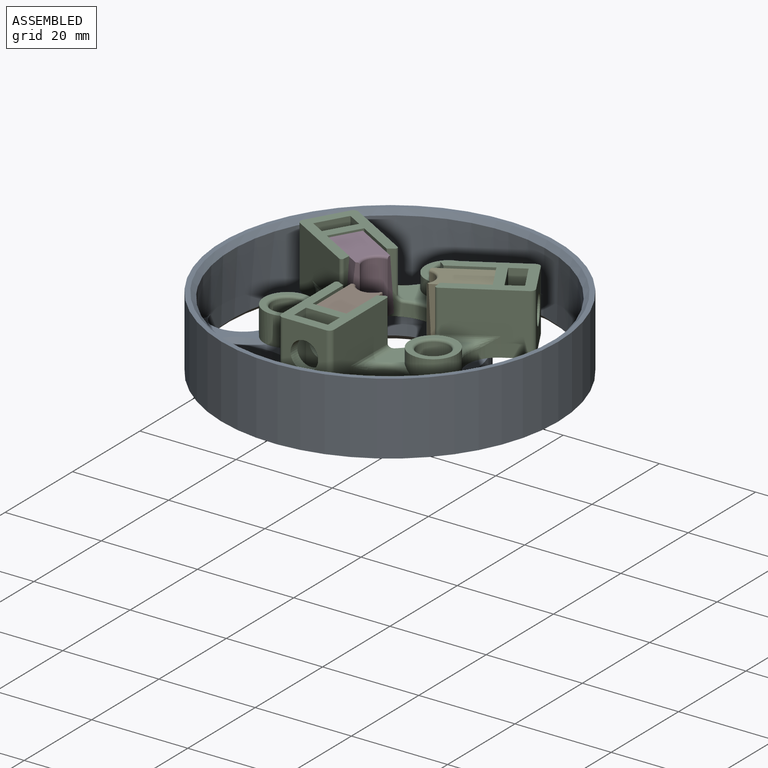
[diagram: assembled view]
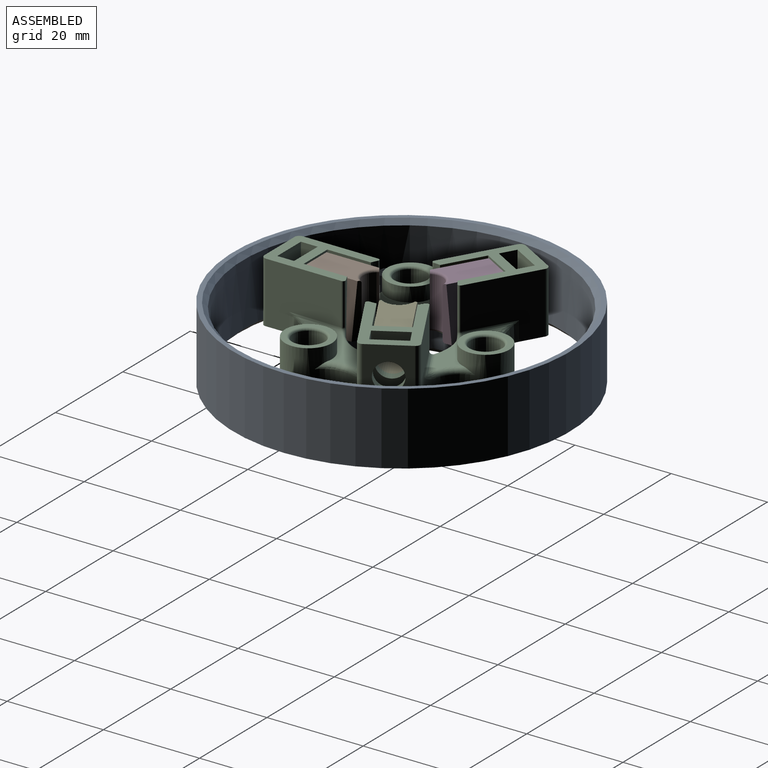
[diagram: assembled view, second angle]
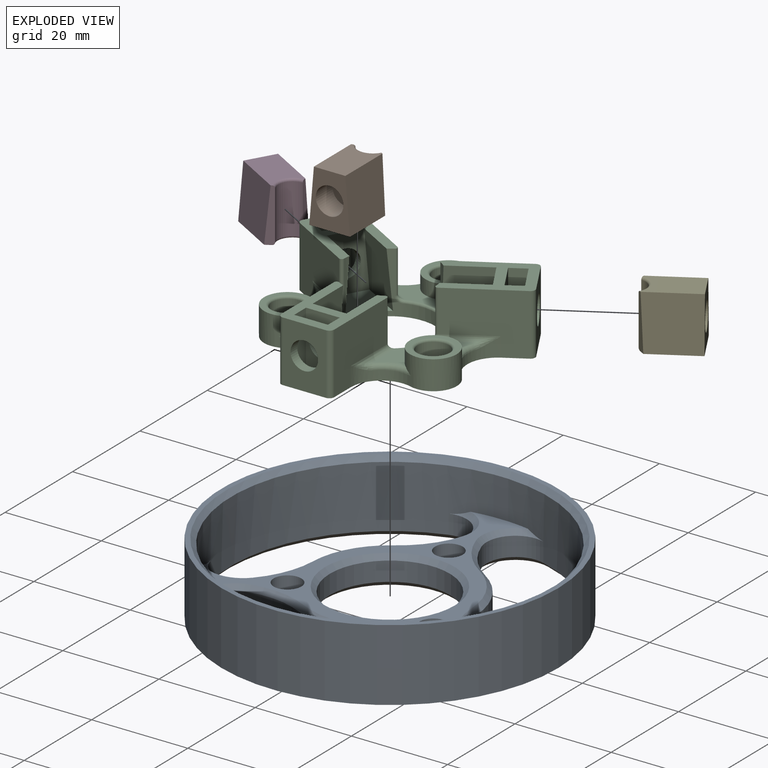
[diagram: exploded view]
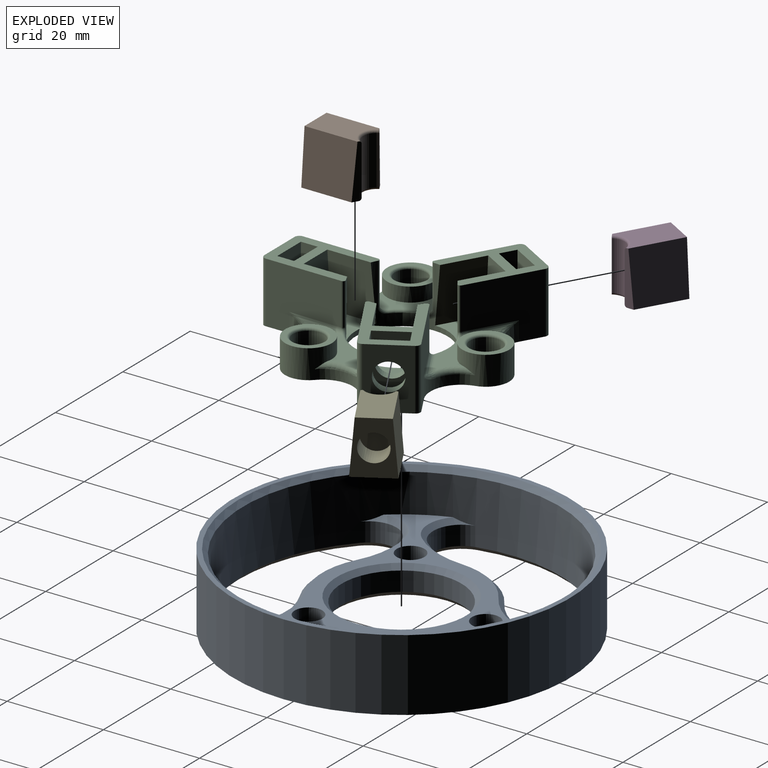
[diagram: exploded view, second angle]
ASSEMBLY  parts=5 mates=4
PART A: 70 faces, bbox 70x70x15 mm
  f0: cylinder r=33mm len=55.6mm, axis (0,0,-1), area 778.6mm2, adj f1,f6,f22,f23,f24,f31,f42,f58
  f1: plane 8x2.6mm, normal (0.87,0.5,0), area 24mm2, adj f0,f2,f22,f33
  f2: cylinder r=33mm len=48.15mm, axis (0,0,-1), area 778.6mm2, adj f1,f3,f22,f27,f28,f34,f47,f53
  f3: plane 8x3mm, normal (0,-1,0), area 24mm2, adj f2,f4,f22,f32
  f4: cylinder r=33mm len=48.15mm, axis (0,0,-1), area 778.6mm2, adj f3,f6,f22,f25,f26,f30,f40,f63
  f5: cylinder r=35mm len=70mm, axis (0,0,-1), area 3298.7mm2, adj f7,f8
  f6: plane 8x2.6mm, normal (-0.87,0.5,0), area 24mm2, adj f0,f4,f22,f29
  f7: plane 70x70mm, normal (0,0,1), area 217mm2, adj f5,f29,f30,f31,f32,f33,f34
  f8: plane 70x70mm, normal (0,0,-1), area 741.5mm2, adj f5,f18,f19,f20,f35,f36,f37,f38
  f9: cylinder r=17.2mm len=11.5mm, axis (0,0,-1), area 47.3mm2, adj f10,f23,f43,f61
  f10: cylinder r=17.5mm len=16.1mm, axis (0,0,-1), area 66.9mm2, adj f9,f11,f45,f60
  f11: cylinder r=17.2mm len=11.5mm, axis (0,0,-1), area 47.3mm2, adj f10,f24,f46,f59
  f12: cylinder r=17.2mm len=10.73mm, axis (0,0,-1), area 47.3mm2, adj f13,f25,f36,f66
  f13: cylinder r=17.5mm len=13.94mm, axis (0,0,-1), area 66.9mm2, adj f12,f14,f35,f65
  f14: cylinder r=17.2mm len=9.18mm, axis (0,0,-1), area 47.3mm2, adj f13,f26,f37,f64
  f15: cylinder r=17.2mm len=9.18mm, axis (0,0,-1), area 47.3mm2, adj f16,f27,f50,f54
  f16: cylinder r=17.5mm len=13.94mm, axis (0,0,-1), area 66.9mm2, adj f15,f17,f52,f55
  f17: cylinder r=17.2mm len=10.73mm, axis (0,0,-1), area 47.3mm2, adj f16,f28,f51,f56
  f18: cylinder r=2.88mm len=6mm, axis (0,0,-1), area 108.4mm2, adj f8,f22
  f19: cylinder r=2.88mm len=6mm, axis (0,0,-1), area 108.4mm2, adj f8,f22
  f20: cylinder r=2.88mm len=6mm, axis (0,0,-1), area 108.4mm2, adj f8,f22
  f21: cylinder r=12.5mm len=25mm, axis (0,0,-1), area 314.2mm2, adj f68,f69
  f22: plane 62.18x54.36mm, normal (0,0,1), area 480mm2, adj f0,f1,f2,f3,f4,f6,f18,f19
  f23: cylinder r=6mm len=10.28mm, axis (0,0,1), area 52.5mm2, adj f0,f9,f41,f62
  f24: cylinder r=6mm len=10.28mm, axis (0,0,1), area 52.5mm2, adj f0,f11,f44,f58
  f25: cylinder r=6mm len=10.31mm, axis (0,0,1), area 52.5mm2, adj f4,f12,f38,f67
  f26: cylinder r=6mm len=7.85mm, axis (0,0,1), area 52.5mm2, adj f4,f14,f39,f63
  f27: cylinder r=6mm len=7.85mm, axis (0,0,1), area 52.5mm2, adj f2,f15,f48,f53
  f28: cylinder r=6mm len=10.31mm, axis (0,0,1), area 52.5mm2, adj f2,f17,f49,f57
  f29: plane 3.12x2.38mm, normal (-0.61,0.35,0.71), area 4.3mm2, adj f6,f7,f30,f31
  f30: cone r=33mm half-angle=45deg, axis (0,0,1), area 94.9mm2, adj f4,f7,f29,f32
  f31: cone r=33mm half-angle=45deg, axis (0,0,1), area 94.9mm2, adj f0,f7,f29,f33
  f32: plane 3.05x1mm, normal (0,-0.71,0.71), area 4.3mm2, adj f3,f7,f30,f34
  f33: plane 3.12x2.38mm, normal (0.61,0.35,0.71), area 4.3mm2, adj f1,f7,f31,f34
  f34: cone r=33mm half-angle=45deg, axis (0,0,1), area 94.9mm2, adj f2,f7,f32,f33
  f35: cone r=17.5mm half-angle=45deg, axis (0,0,1), area 23mm2, adj f8,f13,f36,f37
  f36: cone r=17.2mm half-angle=45deg, axis (0,0,-1), area 17.2mm2, adj f8,f12,f35,f38
  f37: cone r=18.2mm half-angle=45deg, axis (0,0,-1), area 17.2mm2, adj f8,f14,f35,f39
  f38: cone r=7mm half-angle=45deg, axis (0,0,-1), area 20.1mm2, adj f8,f25,f36,f40
  f39: cone r=7mm half-angle=45deg, axis (0,0,-1), area 20.1mm2, adj f8,f26,f37,f40
  f40: cone r=34mm half-angle=45deg, axis (0,0,-1), area 70.5mm2, adj f4,f8,f38,f39
  f41: cone r=7mm half-angle=45deg, axis (0,0,-1), area 20.1mm2, adj f8,f23,f42,f43
  f42: cone r=34mm half-angle=45deg, axis (0,0,-1), area 70.5mm2, adj f0,f8,f41,f44
  f43: cone r=17.2mm half-angle=45deg, axis (0,0,-1), area 17.2mm2, adj f8,f9,f41,f45
  f44: cone r=7mm half-angle=45deg, axis (0,0,-1), area 20.1mm2, adj f8,f24,f42,f46
  f45: cone r=17.5mm half-angle=45deg, axis (0,0,1), area 23mm2, adj f8,f10,f43,f46
  f46: cone r=18.2mm half-angle=45deg, axis (0,0,-1), area 17.2mm2, adj f8,f11,f44,f45
  f47: cone r=34mm half-angle=45deg, axis (0,0,-1), area 70.5mm2, adj f2,f8,f48,f49
  f48: cone r=7mm half-angle=45deg, axis (0,0,-1), area 20.1mm2, adj f8,f27,f47,f50
  f49: cone r=7mm half-angle=45deg, axis (0,0,-1), area 20.1mm2, adj f8,f28,f47,f51
  f50: cone r=17.2mm half-angle=45deg, axis (0,0,-1), area 17.2mm2, adj f8,f15,f48,f52
  f51: cone r=18.2mm half-angle=45deg, axis (0,0,-1), area 17.2mm2, adj f8,f17,f49,f52
  f52: cone r=17.5mm half-angle=45deg, axis (0,0,1), area 23mm2, adj f8,f16,f50,f51
  f53: cone r=7mm half-angle=45deg, axis (0,0,1), area 16.3mm2, adj f2,f22,f27,f54
  f54: cone r=18.2mm half-angle=45deg, axis (0,0,1), area 17.2mm2, adj f15,f22,f53,f55
  f55: cone r=16.5mm half-angle=45deg, axis (0,0,-1), area 23mm2, adj f16,f22,f54,f56
  f56: cone r=17.2mm half-angle=45deg, axis (0,0,1), area 17.2mm2, adj f17,f22,f55,f57
  f57: cone r=7mm half-angle=45deg, axis (0,0,1), area 16.3mm2, adj f2,f22,f28,f56
  f58: cone r=7mm half-angle=45deg, axis (0,0,1), area 16.3mm2, adj f0,f22,f24,f59
  f59: cone r=17.2mm half-angle=45deg, axis (0,0,1), area 17.2mm2, adj f11,f22,f58,f60
  f60: cone r=16.5mm half-angle=45deg, axis (0,0,-1), area 23mm2, adj f10,f22,f59,f61
  f61: cone r=18.2mm half-angle=45deg, axis (0,0,1), area 17.2mm2, adj f9,f22,f60,f62
  f62: cone r=7mm half-angle=45deg, axis (0,0,1), area 16.3mm2, adj f0,f22,f23,f61
  f63: cone r=7mm half-angle=45deg, axis (0,0,1), area 16.3mm2, adj f4,f22,f26,f64
  f64: cone r=17.2mm half-angle=45deg, axis (0,0,1), area 17.2mm2, adj f14,f22,f63,f65
  f65: cone r=16.5mm half-angle=45deg, axis (0,0,-1), area 23mm2, adj f13,f22,f64,f66
  f66: cone r=18.2mm half-angle=45deg, axis (0,0,1), area 17.2mm2, adj f12,f22,f65,f67
  f67: cone r=7mm half-angle=45deg, axis (0,0,1), area 16.3mm2, adj f4,f22,f25,f66
  f68: cone r=12.5mm half-angle=45deg, axis (0,0,1), area 115.5mm2, adj f21,f22
  f69: cone r=13.5mm half-angle=45deg, axis (0,0,-1), area 115.5mm2, adj f8,f21
PART B: 12 faces, bbox 8.5x11.4x11.2 mm
  f0: plane 11.15x8.46mm, normal (0,0,-1), area 85.9mm2, adj f1,f3,f4,f6,f7,f10
  f1: plane 11.2x11.01mm, normal (-1,0,0.09), area 120.7mm2, adj f0,f2,f4,f7
  f2: plane 11.15x6.54mm, normal (0,0,1), area 65.4mm2, adj f1,f3,f4,f6,f7,f11
  f3: plane 11.2x11.01mm, normal (1,0,0.09), area 120.7mm2, adj f0,f2,f6,f7
  f4: plane 11.2x1.63mm, normal (-0.5,0.87,0), area 14.8mm2, adj f0,f1,f2,f5,f10,f11
  f5: cylinder r=3mm len=10.2mm, axis (0,0,-1), area 64.1mm2, adj f4,f6,f10,f11
  f6: plane 11.2x1.63mm, normal (0.5,0.87,0), area 14.8mm2, adj f0,f2,f3,f5,f10,f11
  f7: plane 11.2x8.46mm, normal (0,-1,0), area 58mm2, adj f0,f1,f2,f3,f8
  f8: cylinder r=2.88mm len=5.75mm, axis (0,-1,0), area 90.3mm2, adj f7,f9
  f9: plane 5.75x5.75mm, normal (0,-1,0), area 26mm2, adj f8
  f10: torus R=3.5mm, axis (0,0,1), area 5.2mm2, adj f0,f4,f5,f6
  f11: torus R=3.5mm, axis (0,0,-1), area 5.2mm2, adj f2,f4,f5,f6
PART C: 110 faces, bbox 48.9x47.9x12.9 mm
  f0: plane 17.21x11mm, normal (0,0,1), area 95.3mm2, adj f3,f19,f26,f27,f39,f40,f48,f50
  f1: plane 19.86x17.58mm, normal (0,0,1), area 95.3mm2, adj f3,f11,f28,f29,f36,f37,f49,f54
  f2: plane 19.86x17.58mm, normal (0,0,1), area 95.3mm2, adj f3,f12,f30,f31,f33,f34,f47,f55
  f3: cylinder r=9.53mm len=19.05mm, axis (0,0,-1), area 167mm2, adj f0,f1,f2,f7,f32,f33,f34,f35
  f4: cylinder r=6.35mm len=9.37mm, axis (0,0,-1), area 27.4mm2, adj f7,f9,f11,f88,f89
  f5: cylinder r=6.35mm len=9.37mm, axis (0,0,-1), area 27.4mm2, adj f7,f9,f12,f90,f91
  f6: plane 18.51x6.7mm, normal (0,0,1), area 57.7mm2, adj f9,f45,f46,f62,f88,f90
  f7: plane 48.76x47.78mm, normal (0,0,-1), area 913.3mm2, adj f3,f4,f5,f9,f11,f12,f13,f14
  f8: cylinder r=3.25mm len=6.5mm, axis (0,0,-1), area 102.1mm2, adj f106,f107
  f9: cylinder r=4.88mm len=9.75mm, axis (0,0,-1), area 133.1mm2, adj f4,f5,f6,f7,f10,f88,f90
  f10: plane 9.75x9.75mm, normal (0,0,1), area 30.5mm2, adj f9,f107
  f11: plane 13.61x12.7mm, normal (-0.5,0.87,0), area 156.4mm2, adj f1,f4,f7,f45,f64,f95
  f12: plane 13.61x12.7mm, normal (0.5,0.87,0), area 156.4mm2, adj f2,f5,f7,f46,f60,f97
  f13: cylinder r=6.35mm len=10.15mm, axis (0,0,-1), area 27.4mm2, adj f7,f17,f30,f86,f87
  f14: cylinder r=6.35mm len=8.22mm, axis (0,0,-1), area 27.4mm2, adj f7,f17,f19,f84,f85
  f15: plane 16.03x9.83mm, normal (0,0,1), area 57.7mm2, adj f17,f43,f44,f57,f84,f86
  f16: cylinder r=3.25mm len=6.5mm, axis (0,0,-1), area 102.1mm2, adj f108,f109
  f17: cylinder r=4.88mm len=9.75mm, axis (0,0,-1), area 133.1mm2, adj f7,f13,f14,f15,f18,f84,f86
  f18: plane 9.75x9.75mm, normal (0,0,1), area 30.5mm2, adj f17,f109
  f19: plane 15.71x12.7mm, normal (-1,0,0), area 156.4mm2, adj f0,f7,f14,f44,f59,f93
  f20: cylinder r=6.35mm len=8.22mm, axis (0,0,-1), area 27.4mm2, adj f7,f24,f26,f82,f83
  f21: cylinder r=6.35mm len=10.15mm, axis (0,0,-1), area 27.4mm2, adj f7,f24,f28,f80,f81
  f22: plane 16.03x9.83mm, normal (0,0,1), area 57.7mm2, adj f24,f41,f42,f52,f81,f82
  f23: cylinder r=3.25mm len=6.5mm, axis (0,0,-1), area 102.1mm2, adj f104,f105
  f24: cylinder r=4.88mm len=9.75mm, axis (0,0,-1), area 133.1mm2, adj f7,f20,f21,f22,f25,f81,f82
  f25: plane 9.75x9.75mm, normal (0,0,1), area 30.5mm2, adj f24,f105
  f26: plane 15.71x12.7mm, normal (1,0,0), area 156.4mm2, adj f0,f7,f20,f42,f50,f92
  f27: plane 12.7x9mm, normal (0,-1,0), area 88.3mm2, adj f0,f7,f92,f93,f99
  f28: plane 13.61x12.7mm, normal (0.5,-0.87,0), area 156.4mm2, adj f1,f7,f21,f41,f54,f94
  f29: plane 12.7x7.79mm, normal (0.87,0.5,0), area 88.3mm2, adj f1,f7,f94,f95,f101
  f30: plane 13.61x12.7mm, normal (-0.5,-0.87,0), area 156.4mm2, adj f2,f7,f13,f43,f55,f96
  f31: plane 12.7x7.79mm, normal (-0.87,0.5,0), area 88.3mm2, adj f2,f7,f96,f97,f103
  f32: plane 12.73x12.55mm, normal (0,0,1), area 78.7mm2, adj f3,f33,f34,f47
  f33: plane 11.86x8.89mm, normal (-0.5,-0.86,-0.09), area 108.8mm2, adj f2,f3,f32,f47
  f34: plane 11.86x8.49mm, normal (0.5,0.86,-0.09), area 108.8mm2, adj f2,f3,f32,f47
  f35: plane 12.73x12.55mm, normal (0,0,1), area 78.7mm2, adj f3,f36,f37,f49
  f36: plane 11.86x8.49mm, normal (-0.5,0.86,-0.09), area 108.8mm2, adj f1,f3,f35,f49
  f37: plane 11.86x8.89mm, normal (0.5,-0.86,-0.09), area 108.8mm2, adj f1,f3,f35,f49
  f38: plane 9.51x9mm, normal (0,0,1), area 78.7mm2, adj f3,f39,f40,f48
  f39: plane 11.86x9.66mm, normal (-1,0,-0.09), area 108.8mm2, adj f0,f3,f38,f48
  f40: plane 11.86x9.66mm, normal (1,0,-0.09), area 108.8mm2, adj f0,f3,f38,f48
  f41: cylinder r=1mm len=10.76mm, axis (0.87,0.5,0), area 13.2mm2, adj f22,f28,f53,f80
  f42: cylinder r=1mm len=11.85mm, axis (0,1,0), area 13.2mm2, adj f22,f26,f51,f83
  f43: cylinder r=1mm len=10.76mm, axis (0.87,-0.5,0), area 13.2mm2, adj f15,f30,f56,f87
  f44: cylinder r=1mm len=11.85mm, axis (0,-1,0), area 13.2mm2, adj f15,f19,f58,f85
  f45: cylinder r=1mm len=10.76mm, axis (-0.87,-0.5,0), area 13.2mm2, adj f6,f11,f63,f89
  f46: cylinder r=1mm len=10.76mm, axis (-0.87,0.5,0), area 13.2mm2, adj f6,f12,f61,f91
  f47: plane 11.7x7.79mm, normal (0.87,-0.5,0), area 67.6mm2, adj f2,f32,f33,f34,f102
  f48: plane 11.7x9mm, normal (0,1,0), area 67.6mm2, adj f0,f38,f39,f40,f98
  f49: plane 11.7x7.79mm, normal (-0.87,-0.5,0), area 67.6mm2, adj f1,f35,f36,f37,f100
  f50: cylinder r=0.5mm len=8.7mm, axis (0,0,-1), area 9.1mm2, adj f0,f3,f26,f51
  f51: bspline ~2x1.8mm, area 1.9mm2, adj f3,f42,f50,f52
  f52: torus R=10.02mm, axis (0,0,1), area 5.2mm2, adj f3,f22,f51,f53
  f53: bspline ~2.21x1.8mm, area 1.9mm2, adj f3,f41,f52,f54
  f54: cylinder r=0.5mm len=8.7mm, axis (0,0,-1), area 9.1mm2, adj f1,f3,f28,f53
  f55: cylinder r=0.5mm len=8.7mm, axis (0,0,-1), area 9.1mm2, adj f2,f3,f30,f56
  f56: bspline ~2.21x1.8mm, area 1.9mm2, adj f3,f43,f55,f57
  f57: torus R=10.02mm, axis (0,0,1), area 5.2mm2, adj f3,f15,f56,f58
  f58: bspline ~1.81x1.8mm, area 1.9mm2, adj f3,f44,f57,f59
  f59: cylinder r=0.5mm len=8.7mm, axis (0,0,-1), area 9.1mm2, adj f0,f3,f19,f58
  f60: cylinder r=0.5mm len=8.7mm, axis (0,0,-1), area 9.1mm2, adj f2,f3,f12,f61
  f61: bspline ~2.04x1.8mm, area 1.9mm2, adj f3,f46,f60,f62
  f62: torus R=10.02mm, axis (0,0,1), area 5.2mm2, adj f3,f6,f61,f63
  f63: bspline ~2.04x1.8mm, area 1.9mm2, adj f3,f45,f62,f64
  f64: cylinder r=0.5mm len=8.7mm, axis (0,0,-1), area 9.1mm2, adj f1,f3,f11,f63
  f65: plane 12x6.06mm, normal (0.87,-0.5,0), area 58mm2, adj f2,f66,f68,f69,f103
  f66: plane 12x3.03mm, normal (0.5,0.87,0), area 42mm2, adj f2,f65,f67,f69
  f67: plane 12x6.06mm, normal (-0.87,0.5,0), area 58mm2, adj f2,f66,f68,f69,f102
  f68: plane 12x3.03mm, normal (-0.5,-0.87,0), area 42mm2, adj f2,f65,f67,f69
  f69: plane 7.81x6.53mm, normal (0,0,1), area 24.5mm2, adj f65,f66,f67,f68
  f70: plane 12x6.06mm, normal (-0.87,-0.5,0), area 58mm2, adj f1,f71,f73,f74,f101
  f71: plane 12x3.03mm, normal (0.5,-0.87,0), area 42mm2, adj f1,f70,f72,f74
  f72: plane 12x6.06mm, normal (0.87,0.5,0), area 58mm2, adj f1,f71,f73,f74,f100
  f73: plane 12x3.03mm, normal (-0.5,0.87,0), area 42mm2, adj f1,f70,f72,f74
  f74: plane 7.81x6.53mm, normal (0,0,1), area 24.5mm2, adj f70,f71,f72,f73
  f75: plane 12x7mm, normal (0,1,0), area 58mm2, adj f0,f76,f78,f79,f99
  f76: plane 12x3.5mm, normal (-1,0,0), area 42mm2, adj f0,f75,f77,f79
  f77: plane 12x7mm, normal (0,-1,0), area 58mm2, adj f0,f76,f78,f79,f98
  f78: plane 12x3.5mm, normal (1,0,0), area 42mm2, adj f0,f75,f77,f79
  f79: plane 7x3.5mm, normal (0,0,1), area 24.5mm2, adj f75,f76,f77,f78
  f80: bspline ~4.24x4.15mm, area 3.9mm2, adj f21,f41,f81
  f81: torus R=7.35mm, axis (0,0,1), area 9.8mm2, adj f21,f22,f24,f80
  f82: torus R=7.35mm, axis (0,0,1), area 9.8mm2, adj f20,f22,f24,f83
  f83: bspline ~5.51x2.15mm, area 3.9mm2, adj f20,f42,f82
  f84: torus R=7.35mm, axis (0,0,1), area 9.8mm2, adj f14,f15,f17,f85
  f85: bspline ~5.04x2mm, area 3.9mm2, adj f14,f44,f84
  f86: torus R=7.35mm, axis (0,0,1), area 9.8mm2, adj f13,f15,f17,f87
  f87: bspline ~3.86x3.67mm, area 3.9mm2, adj f13,f43,f86
  f88: torus R=7.35mm, axis (0,0,1), area 9.8mm2, adj f4,f6,f9,f89
  f89: bspline ~5.39x2mm, area 3.9mm2, adj f4,f45,f88
  f90: torus R=7.35mm, axis (0,0,1), area 9.8mm2, adj f5,f6,f9,f91
  f91: bspline ~5.39x2mm, area 3.9mm2, adj f5,f46,f90
  f92: cylinder r=1mm len=12.7mm, axis (0,0,-1), area 19.9mm2, adj f0,f7,f26,f27
  f93: cylinder r=1mm len=12.7mm, axis (0,0,1), area 19.9mm2, adj f0,f7,f19,f27
  f94: cylinder r=1mm len=12.7mm, axis (0,0,1), area 19.9mm2, adj f1,f7,f28,f29
  f95: cylinder r=1mm len=12.7mm, axis (0,0,-1), area 19.9mm2, adj f1,f7,f11,f29
  f96: cylinder r=1mm len=12.7mm, axis (0,0,-1), area 19.9mm2, adj f2,f7,f30,f31
  f97: cylinder r=1mm len=12.7mm, axis (0,0,1), area 19.9mm2, adj f2,f7,f12,f31
  f98: cylinder r=2.88mm len=5.75mm, axis (0,-1,0), area 36.1mm2, adj f48,f77
  f99: cylinder r=2.88mm len=5.75mm, axis (0,-1,0), area 36.1mm2, adj f27,f75
  f100: cylinder r=2.88mm len=5.98mm, axis (0.87,0.5,0), area 36.1mm2, adj f49,f72
  f101: cylinder r=2.88mm len=5.98mm, axis (0.87,0.5,0), area 36.1mm2, adj f29,f70
  f102: cylinder r=2.88mm len=5.98mm, axis (-0.87,0.5,0), area 36.1mm2, adj f47,f67
  f103: cylinder r=2.88mm len=5.98mm, axis (-0.87,0.5,0), area 36.1mm2, adj f31,f65
  f104: torus R=3.75mm, axis (0,0,1), area 16.9mm2, adj f7,f23
  f105: torus R=3.75mm, axis (0,0,1), area 16.9mm2, adj f23,f25
  f106: torus R=3.75mm, axis (0,0,1), area 16.9mm2, adj f7,f8
  f107: torus R=3.75mm, axis (0,0,1), area 16.9mm2, adj f8,f10
  f108: torus R=3.75mm, axis (0,0,1), area 16.9mm2, adj f7,f16
  f109: torus R=3.75mm, axis (0,0,1), area 16.9mm2, adj f16,f18
PART D: same geometry as B
PART E: same geometry as B
PLACE A at identity
PLACE B t=(0,-5,-0.15)mm
PLACE C at identity
PLACE D rot(axis=(0,0,-1),120deg) t=(-4.33,2.5,-0.15)mm
PLACE E rot(axis=(0,0,1),120deg) t=(4.33,2.5,-0.15)mm
MATE fastened C.f8 <-> A.f18  axis (0,0,-1) through (0,17.5,6)mm
MATE slider D.f8 <-> C.f102  axis (-0.87,0.5,0) through (-15.5,8.95,12.7)mm
MATE slider E.f8 <-> C.f100  axis (0.87,0.5,0) through (15.5,8.95,12.7)mm
MATE slider B.f8 <-> C.f98  axis (0,-1,0) through (0,-17.9,12.7)mm
